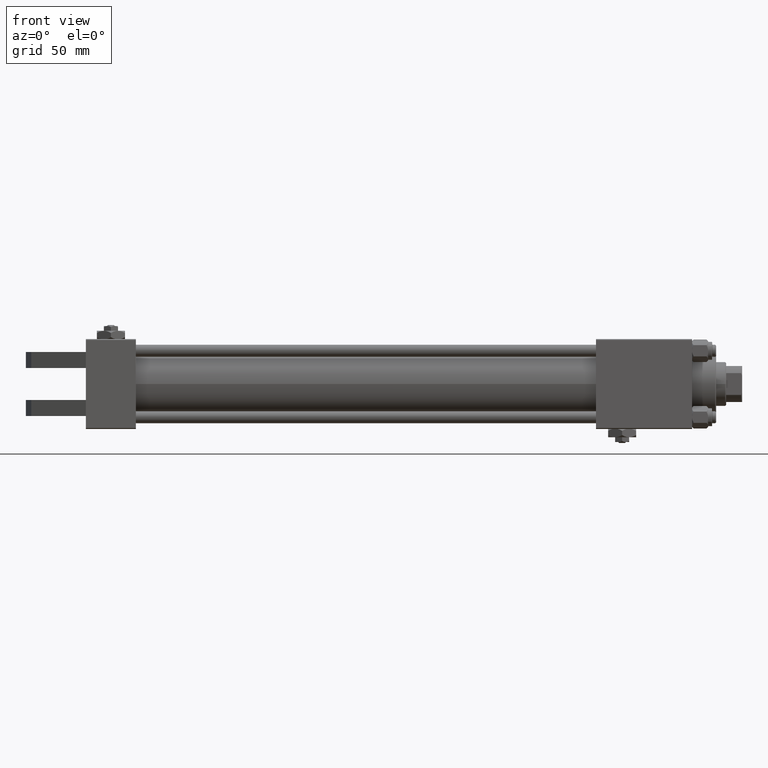
[diagram: clean part render]
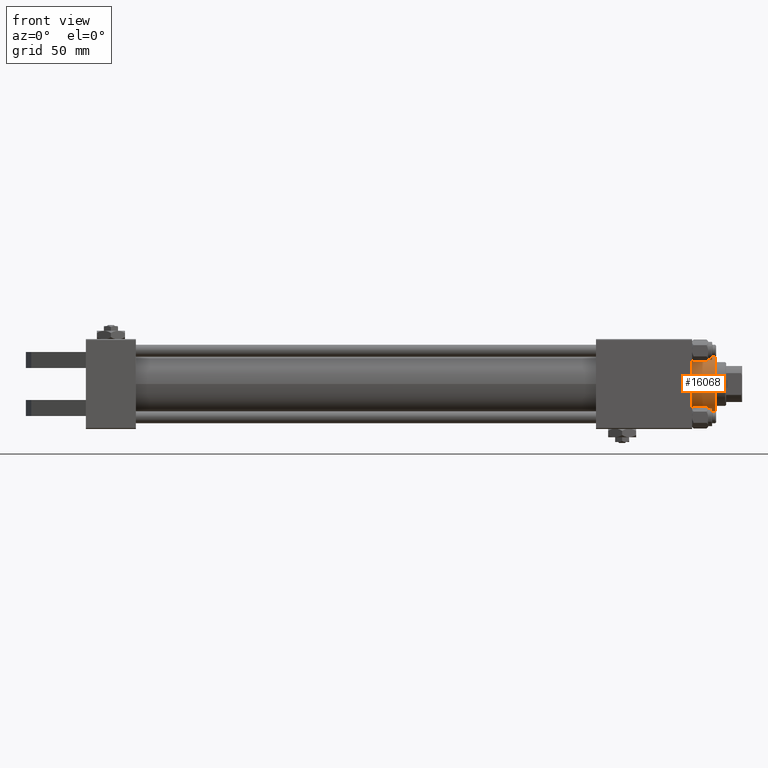
[diagram: same view with one face highlighted and labeled with its STEP entity id]
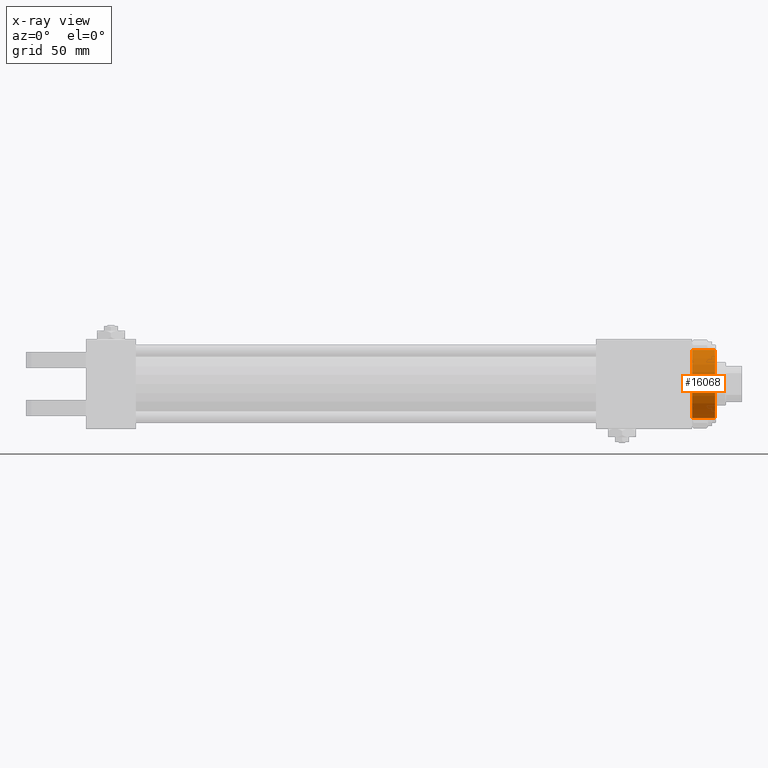
[diagram: x-ray of the same camera — body ghosted, the highlighted face saturated]
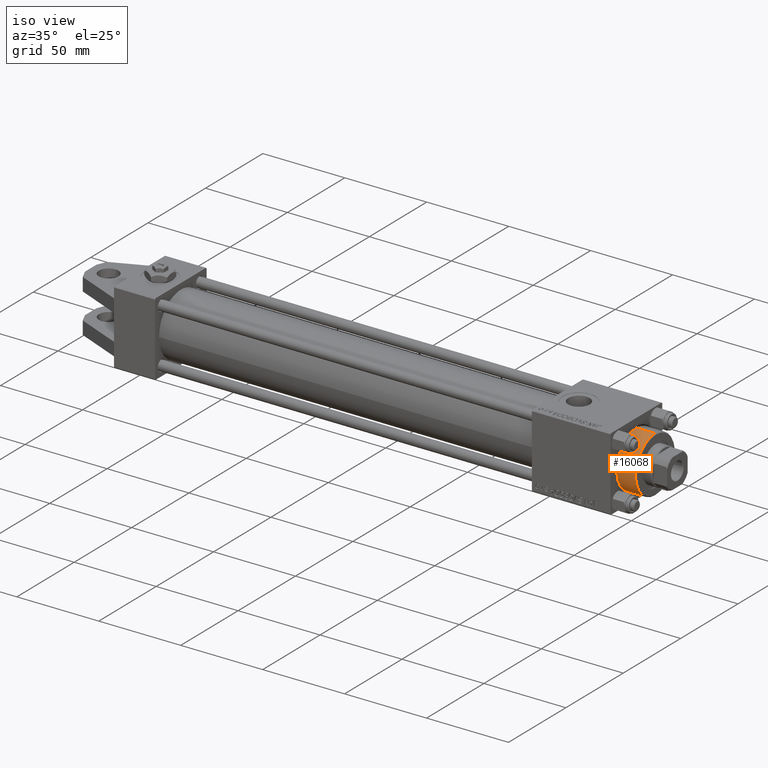
[diagram: same view with one face highlighted and labeled with its STEP entity id]
A machine part, front view. The second image highlights one B-rep face of the part: STEP entity #16068.
The next image is the same camera in x-ray: the body ghosted, the highlighted face saturated — about 0% of this face is hidden behind the body in this view.
A second angle (iso view) of the same face is appended — the face is thin or edge-on in the first view.
In plain terms, the highlighted cylindrical surface (edge-blend (fillet) strip) has radius 17 mm, axis along (-1, 0, 0).
Its self-contained STEP definition (entity closure, byte-faithful):
#651 = CARTESIAN_POINT ( 'NONE',  ( 17.00000000000000000, 2.081899558550500280E-15, 40.70000000000000284 ) ) ;
#910 = DIRECTION ( 'NONE',  ( 0.000000000000000000, 0.000000000000000000, 1.000000000000000000 ) ) ;
#1086 = EDGE_CURVE ( 'NONE', #2124, #17597, #37348, .T. ) ;
#2124 = VERTEX_POINT ( 'NONE', #26685 ) ;
#2497 = CYLINDRICAL_SURFACE ( 'NONE', #40966, 17.00000000000000000 ) ;
#6693 = VERTEX_POINT ( 'NONE', #40409 ) ;
#8903 = CARTESIAN_POINT ( 'NONE',  ( 17.00000000000000000, 2.081899558550500280E-15, 28.69999999999999929 ) ) ;
#10820 = VERTEX_POINT ( 'NONE', #8903 ) ;
#12433 = DIRECTION ( 'NONE',  ( -0.000000000000000000, -0.000000000000000000, -1.000000000000000000 ) ) ;
#12692 = LINE ( 'NONE', #651, #29188 ) ;
#12747 = ORIENTED_EDGE ( 'NONE', *, *, #51428, .F. ) ;
#14288 = FACE_OUTER_BOUND ( 'NONE', #47338, .T. ) ;
#16068 = ADVANCED_FACE ( 'NONE', ( #14288 ), #2497, .T. ) ;
#17218 = AXIS2_PLACEMENT_3D ( 'NONE', #37283, #18259, #42576 ) ;
#17597 = VERTEX_POINT ( 'NONE', #19744 ) ;
#18259 = DIRECTION ( 'NONE',  ( 0.000000000000000000, 0.000000000000000000, -1.000000000000000000 ) ) ;
#19744 = CARTESIAN_POINT ( 'NONE',  ( -17.00000000000000000, 0.000000000000000000, 28.69999999999999929 ) ) ;
#23385 = EDGE_CURVE ( 'NONE', #17597, #10820, #46099, .T. ) ;
#23591 = AXIS2_PLACEMENT_3D ( 'NONE', #33602, #910, #45860 ) ;
#25583 = CIRCLE ( 'NONE', #17218, 17.00000000000000000 ) ;
#26685 = CARTESIAN_POINT ( 'NONE',  ( -17.00000000000000000, 0.000000000000000000, 40.19999999999999574 ) ) ;
#29188 = VECTOR ( 'NONE', #12433, 1000.000000000000000 ) ;
#30230 = CARTESIAN_POINT ( 'NONE',  ( 0.000000000000000000, 0.000000000000000000, 40.70000000000000284 ) ) ;
#32207 = DIRECTION ( 'NONE',  ( -0.000000000000000000, -0.000000000000000000, -1.000000000000000000 ) ) ;
#33116 = ORIENTED_EDGE ( 'NONE', *, *, #23385, .T. ) ;
#33602 = CARTESIAN_POINT ( 'NONE',  ( 0.000000000000000000, 0.000000000000000000, 28.69999999999999929 ) ) ;
#34683 = ORIENTED_EDGE ( 'NONE', *, *, #1086, .T. ) ;
#36363 = EDGE_CURVE ( 'NONE', #6693, #2124, #25583, .T. ) ;
#37283 = CARTESIAN_POINT ( 'NONE',  ( 0.000000000000000000, 0.000000000000000000, 40.19999999999999574 ) ) ;
#37348 = LINE ( 'NONE', #41261, #40690 ) ;
#37565 = DIRECTION ( 'NONE',  ( -0.000000000000000000, -0.000000000000000000, -1.000000000000000000 ) ) ;
#40409 = CARTESIAN_POINT ( 'NONE',  ( 17.00000000000000000, 2.081899558550500280E-15, 40.19999999999999574 ) ) ;
#40690 = VECTOR ( 'NONE', #32207, 1000.000000000000000 ) ;
#40966 = AXIS2_PLACEMENT_3D ( 'NONE', #30230, #37565, #49808 ) ;
#41261 = CARTESIAN_POINT ( 'NONE',  ( -17.00000000000000000, 0.000000000000000000, 40.70000000000000284 ) ) ;
#42505 = ORIENTED_EDGE ( 'NONE', *, *, #36363, .T. ) ;
#42576 = DIRECTION ( 'NONE',  ( 1.000000000000000000, 0.000000000000000000, 0.000000000000000000 ) ) ;
#45860 = DIRECTION ( 'NONE',  ( 1.000000000000000000, 0.000000000000000000, 0.000000000000000000 ) ) ;
#46099 = CIRCLE ( 'NONE', #23591, 17.00000000000000000 ) ;
#47338 = EDGE_LOOP ( 'NONE', ( #12747, #42505, #34683, #33116 ) ) ;
#49808 = DIRECTION ( 'NONE',  ( -1.000000000000000000, 0.000000000000000000, 0.000000000000000000 ) ) ;
#51428 = EDGE_CURVE ( 'NONE', #6693, #10820, #12692, .T. ) ;